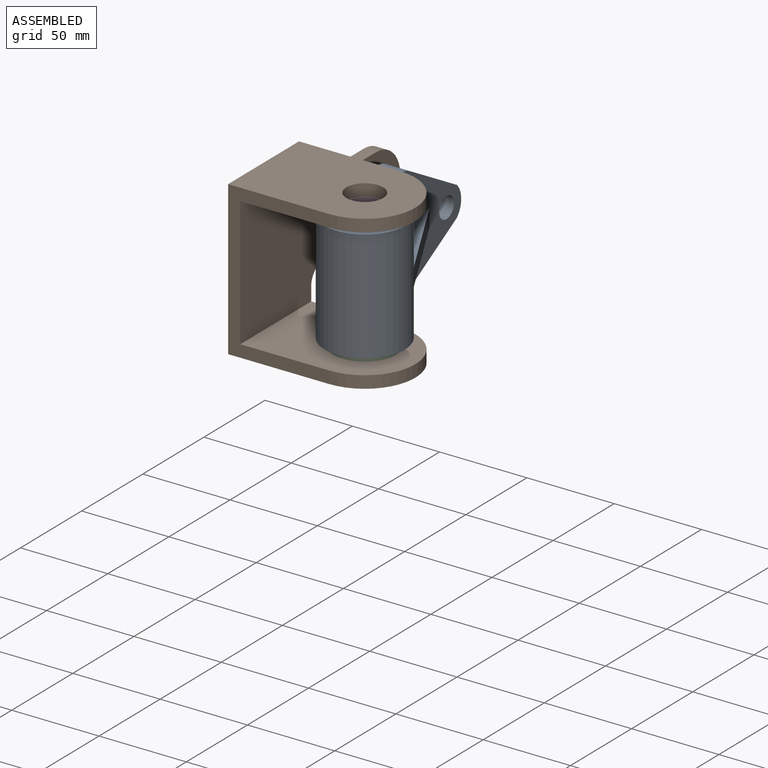
[diagram: assembled view]
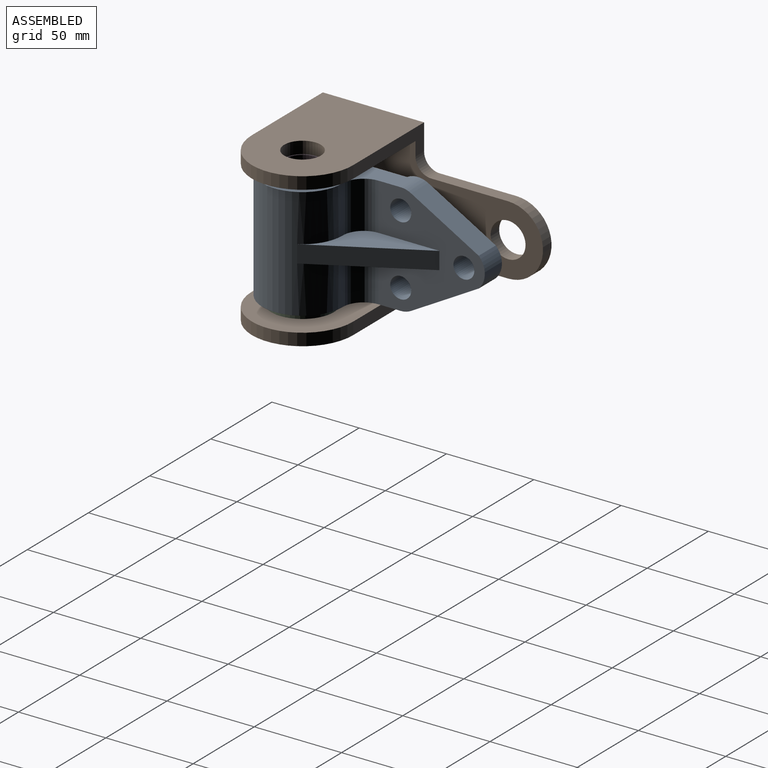
[diagram: assembled view, second angle]
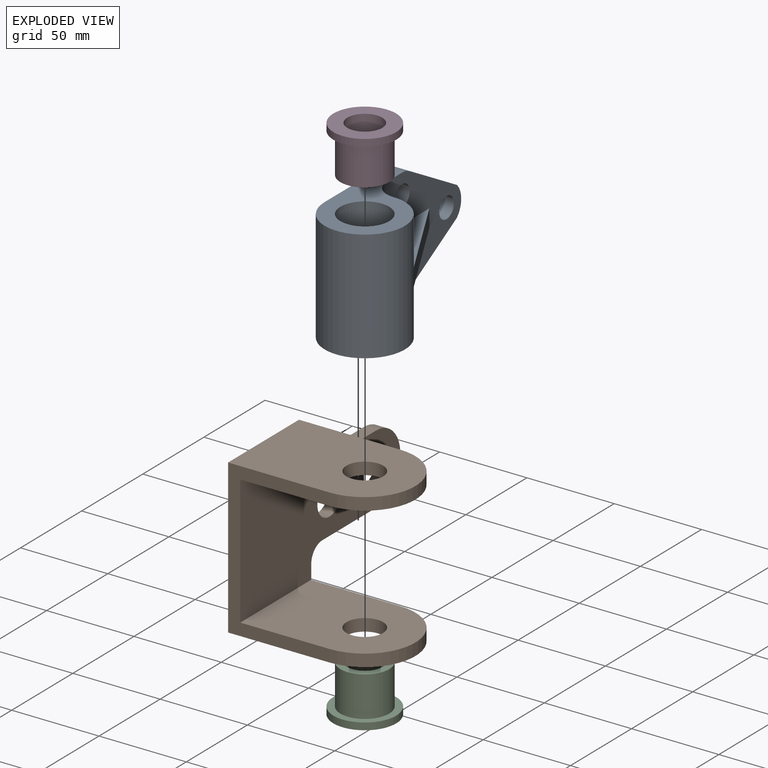
[diagram: exploded view]
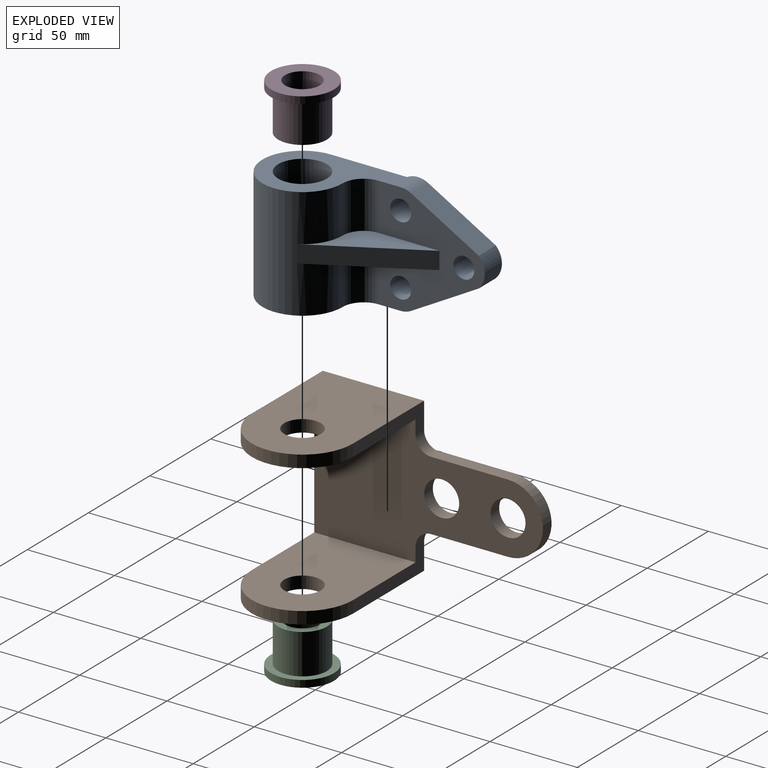
[diagram: exploded view, second angle]
ASSEMBLY  parts=4 mates=3
PART A: 21 faces, bbox 49x64x119 mm
  f0: plane 64x61mm, normal (1,0,0), area 2053.7mm2, adj f2,f4,f5,f6,f8,f9,f10,f11
  f1: cylinder r=23mm len=64mm, axis (0,1,0), area 6690.3mm2, adj f2,f3,f4,f5,f6,f18,f19,f20
  f2: cylinder r=12mm len=27mm, axis (0,-1,0), area 508.9mm2, adj f0,f1,f4,f19
  f3: plane 64x47.84mm, normal (-1,0,0), area 2355.3mm2, adj f1,f4,f5,f11,f12,f13
  f4: plane 70.84x46mm, normal (0,-1,0), area 1463.8mm2, adj f0,f1,f2,f3,f7,f12
  f5: plane 70.84x46mm, normal (0,1,0), area 1463.8mm2, adj f0,f1,f3,f6,f7,f11
  f6: cylinder r=12mm len=27mm, axis (0,-1,0), area 508.9mm2, adj f0,f1,f5,f20
  f7: cylinder r=14mm len=64mm, axis (0,-1,0), area 5629.7mm2, adj f4,f5
  f8: plane 38.73x21.95mm, normal (0,-0.87,0.49), area 623.3mm2, adj f0,f9,f12,f17
  f9: cylinder r=12mm len=16.97mm, axis (1,0,0), area 263.9mm2, adj f0,f8,f10,f17
  f10: plane 38.73x21.95mm, normal (0,0.87,0.49), area 623.3mm2, adj f0,f9,f11,f17
  f11: cylinder r=12mm len=17.92mm, axis (1,0,0), area 143.2mm2, adj f0,f3,f5,f10,f13,f17
  f12: cylinder r=12mm len=17.92mm, axis (1,0,0), area 143.2mm2, adj f0,f3,f4,f8,f13,f17
  f13: plane 40x3mm, normal (0,0,-1), area 120mm2, adj f3,f11,f12,f17
  f14: cylinder r=6mm len=14mm, axis (1,0,0), area 527.8mm2, adj f0,f17
  f15: cylinder r=6mm len=14mm, axis (1,0,0), area 527.8mm2, adj f0,f17
  f16: cylinder r=6mm len=14mm, axis (1,0,0), area 527.8mm2, adj f0,f17
  f17: plane 64x60.16mm, normal (-1,0,0), area 2288.4mm2, adj f8,f9,f10,f11,f12,f13,f14,f15
  f18: plane 58.98x32.19mm, normal (0.88,0,0.48), area 671.9mm2, adj f0,f1,f19,f20
  f19: plane 58.98x32.19mm, normal (0,-1,0), area 602.5mm2, adj f0,f1,f2,f18
  f20: plane 58.98x32.19mm, normal (0,1,0), area 602.5mm2, adj f0,f1,f6,f18
PART B: 20 faces, bbox 88x131x87 mm
  f0: plane 131x74mm, normal (0,0,1), area 6446.8mm2, adj f3,f4,f5,f8,f9,f10,f11,f12
  f1: plane 131x88mm, normal (0,0,-1), area 7258.8mm2, adj f2,f4,f5,f8,f9,f10,f11,f12
  f2: plane 87x58mm, normal (-1,0,0), area 4338.7mm2, adj f1,f4,f5,f6,f7
  f3: plane 80x58mm, normal (1,0,0), area 3932.7mm2, adj f0,f4,f5,f6,f7
  f4: plane 88x58mm, normal (0,-1,0), area 1330mm2, adj f0,f1,f2,f3,f6,f13,f14,f16
  f5: plane 58x15mm, normal (0,1,0), area 462mm2, adj f0,f1,f2,f3,f6,f9
  f6: cylinder r=29mm len=58mm, axis (1,0,0), area 637.7mm2, adj f2,f3,f4,f5
  f7: cylinder r=10.5mm len=21mm, axis (1,0,0), area 461.8mm2, adj f2,f3
  f8: plane 44x7mm, normal (-1,0,0), area 308mm2, adj f0,f1,f9,f10
  f9: cylinder r=9mm len=9mm, axis (0,0,1), area 99mm2, adj f0,f1,f5,f8
  f10: cylinder r=20mm len=40mm, axis (0,0,-1), area 439.8mm2, adj f0,f1,f8,f18
  f11: cylinder r=10mm len=20mm, axis (0,0,1), area 439.8mm2, adj f0,f1
  f12: cylinder r=10mm len=20mm, axis (0,0,1), area 439.8mm2, adj f0,f1
  f13: plane 87x58mm, normal (1,0,0), area 4338.7mm2, adj f1,f4,f15,f16,f17
  f14: plane 80x58mm, normal (-1,0,0), area 3932.7mm2, adj f0,f4,f15,f16,f17
  f15: plane 58x15mm, normal (0,1,0), area 462mm2, adj f0,f1,f13,f14,f16,f19
  f16: cylinder r=29mm len=58mm, axis (-1,0,0), area 637.7mm2, adj f4,f13,f14,f15
  f17: cylinder r=10.5mm len=21mm, axis (-1,0,0), area 461.8mm2, adj f13,f14
  f18: plane 44x7mm, normal (1,0,0), area 308mm2, adj f0,f1,f10,f19
  f19: cylinder r=9mm len=9mm, axis (0,0,1), area 99mm2, adj f0,f1,f15,f18
PART C: 6 faces, bbox 36x36x27 mm
  f0: plane 28x28mm, normal (0,0,1), area 301.6mm2, adj f1,f5
  f1: cylinder r=10mm len=27mm, axis (0,0,1), area 1696.5mm2, adj f0,f2
  f2: plane 36x36mm, normal (0,0,-1), area 703.7mm2, adj f1,f3
  f3: cylinder r=18mm len=36mm, axis (0,0,1), area 452.4mm2, adj f2,f4
  f4: plane 36x36mm, normal (0,0,1), area 402.1mm2, adj f3,f5
  f5: cylinder r=14mm len=28mm, axis (0,0,1), area 2023.2mm2, adj f0,f4
PART D: same geometry as C
PLACE A rot(axis=(-1,0,0),90deg) t=(-58.48,-13.27,53.23)mm fixed
PLACE B rot(axis=(0,1,0),90deg) t=(-116.48,88.73,96.23)mm
PLACE C t=(-58.48,-13.27,13.8)mm
PLACE D rot(axis=(1,0,0),180deg) t=(-58.48,-13.27,92.67)mm
MATE fastened A.f7 <-> C.f1  axis (0,0,1) through (-58.48,-13.27,21.23)mm
MATE revolute D.f1 <-> B.f7  axis (0,0,1) through (-58.48,-13.27,89.23)mm
MATE fastened A.f7 <-> D.f1  axis (0,0,1) through (-58.48,-13.27,85.23)mm
